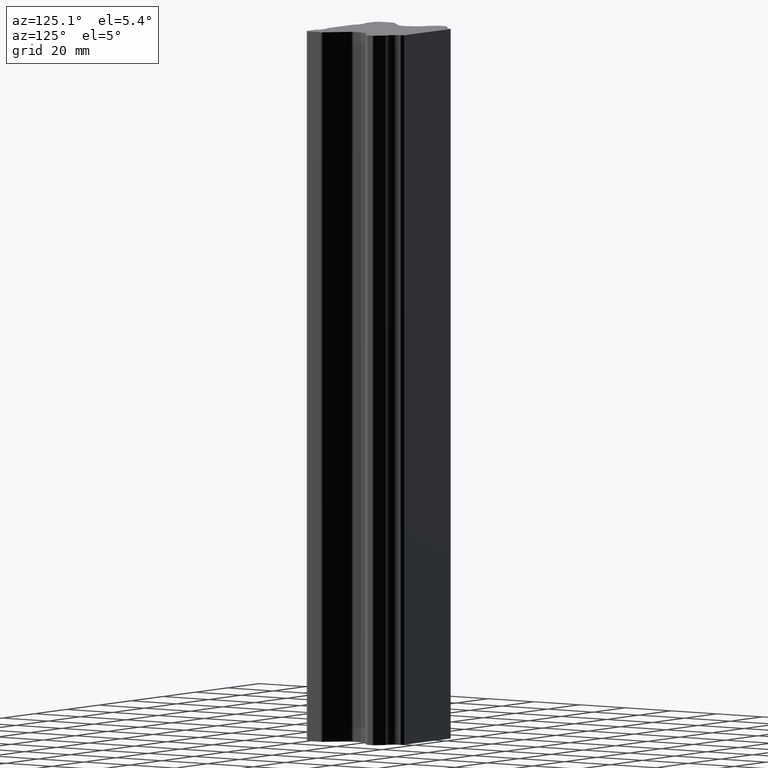
[diagram: clean part render]
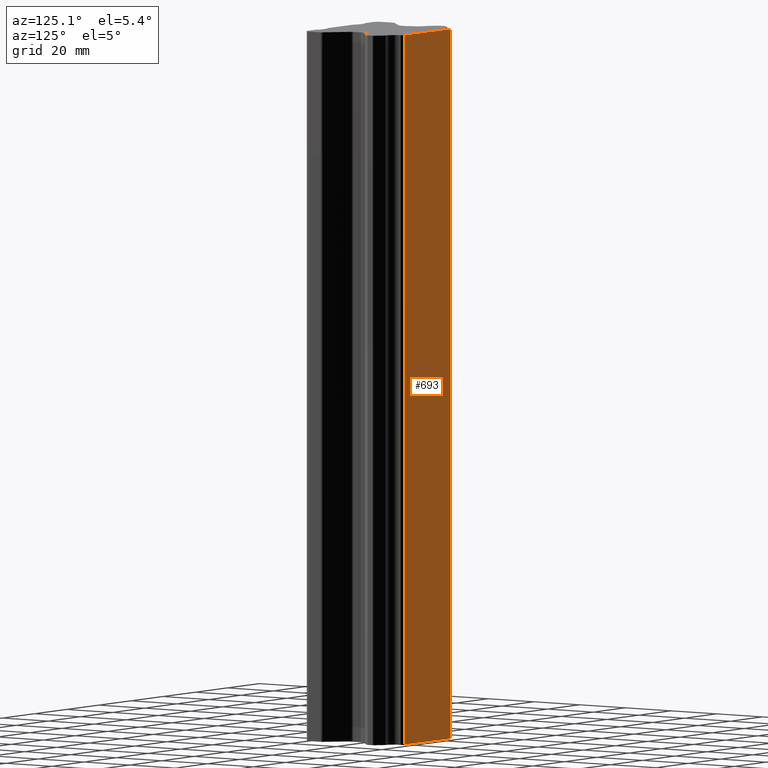
[diagram: same view with one face highlighted and labeled with its STEP entity id]
A machine part, auxiliary view. The second image highlights one B-rep face of the part: STEP entity #693.
In plain terms, the highlighted planar face has unit normal (0, 1, 0).
Its self-contained STEP definition (entity closure, byte-faithful):
#17 = VERTEX_POINT ( 'NONE', #572 ) ;
#513 = EDGE_CURVE ( 'NONE', #514, #515, #1439, .T. ) ;
#514 = VERTEX_POINT ( 'NONE', #1435 ) ;
#515 = VERTEX_POINT ( 'NONE', #1434 ) ;
#572 = CARTESIAN_POINT ( 'NONE',  ( 14.40034900003966100, -5.507582996757715500E-013, 127.5000000000000000 ) ) ;
#599 = VERTEX_POINT ( 'NONE', #1624 ) ;
#635 = EDGE_LOOP ( 'NONE', ( #636, #637, #638, #699 ) ) ;
#636 = ORIENTED_EDGE ( 'NONE', *, *, #675, .T. ) ;
#637 = ORIENTED_EDGE ( 'NONE', *, *, #695, .T. ) ;
#638 = ORIENTED_EDGE ( 'NONE', *, *, #513, .T. ) ;
#674 = EDGE_CURVE ( 'NONE', #515, #17, #1642, .T. ) ;
#675 = EDGE_CURVE ( 'NONE', #17, #599, #1681, .T. ) ;
#693 = ADVANCED_FACE ( 'NONE', ( #1727 ), #1726, .T. ) ;
#695 = EDGE_CURVE ( 'NONE', #599, #514, #1634, .T. ) ;
#699 = ORIENTED_EDGE ( 'NONE', *, *, #674, .T. ) ;
#1434 = CARTESIAN_POINT ( 'NONE',  ( -14.40034900004013000, -1.995429614590962600E-013, 127.5000000000000000 ) ) ;
#1435 = CARTESIAN_POINT ( 'NONE',  ( -14.40034900004029300, -3.712511556702636900E-013, -127.5000000000000000 ) ) ;
#1436 = DIRECTION ( 'NONE',  ( 0.0000000000000000000, 0.0000000000000000000, 1.000000000000000000 ) ) ;
#1437 = VECTOR ( 'NONE', #1436, 1000.000000000000000 ) ;
#1438 = CARTESIAN_POINT ( 'NONE',  ( -14.40034900004000000, -1.137000000000000100E-013, -127.5000000000000000 ) ) ;
#1439 = LINE ( 'NONE', #1438, #1437 ) ;
#1616 = DIRECTION ( 'NONE',  ( -1.000000000000000000, 0.0000000000000000000, 0.0000000000000000000 ) ) ;
#1617 = VECTOR ( 'NONE', #1616, 1000.000000000000000 ) ;
#1618 = CARTESIAN_POINT ( 'NONE',  ( 14.40034900004000000, -1.137000000000000100E-013, -127.5000000000000000 ) ) ;
#1624 = CARTESIAN_POINT ( 'NONE',  ( 14.40034900003983900, -2.431848884911791400E-013, -127.5000000000000000 ) ) ;
#1630 = DIRECTION ( 'NONE',  ( 0.0000000000000000000, 0.0000000000000000000, 1.000000000000000000 ) ) ;
#1631 = DIRECTION ( 'NONE',  ( 0.0000000000000000000, 1.000000000000000000, 0.0000000000000000000 ) ) ;
#1632 = CARTESIAN_POINT ( 'NONE',  ( 14.40034900004000000, -1.137000000000000100E-013, -127.5000000000000000 ) ) ;
#1633 = AXIS2_PLACEMENT_3D ( 'NONE', #1632, #1631, #1630 ) ;
#1634 = LINE ( 'NONE', #1618, #1617 ) ;
#1642 = LINE ( 'NONE', #1680, #1679 ) ;
#1678 = DIRECTION ( 'NONE',  ( 1.000000000000000000, 0.0000000000000000000, 0.0000000000000000000 ) ) ;
#1679 = VECTOR ( 'NONE', #1678, 1000.000000000000000 ) ;
#1680 = CARTESIAN_POINT ( 'NONE',  ( 14.40034900004000000, -1.137000000000000100E-013, 127.5000000000000000 ) ) ;
#1681 = LINE ( 'NONE', #1730, #1729 ) ;
#1726 = PLANE ( 'NONE',  #1633 ) ;
#1727 = FACE_OUTER_BOUND ( 'NONE', #635, .T. ) ;
#1728 = DIRECTION ( 'NONE',  ( 0.0000000000000000000, 0.0000000000000000000, -1.000000000000000000 ) ) ;
#1729 = VECTOR ( 'NONE', #1728, 1000.000000000000000 ) ;
#1730 = CARTESIAN_POINT ( 'NONE',  ( 14.40034900004000000, -1.137000000000000100E-013, -127.5000000000000000 ) ) ;